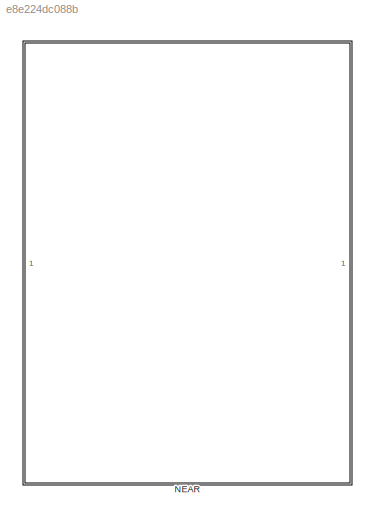
MODEL slx_e8e224dc088b
KIND library
CONFIG AbsTol = auto
CONFIG EnableMultiTasking = off
CONFIG FixedStep = auto
CONFIG MaxStep = auto
CONFIG MinStep = auto
CONFIG RelTol = 1e-3
CONFIG SampleTimeConstraint = Unconstrained
CONFIG SolverName = VariableStepAuto
CONFIG StartTime = 0.0
CONFIG StopTime = 10.0
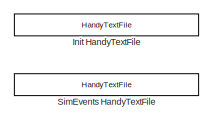
[diagram: NEAR - part 1/3, top left region]
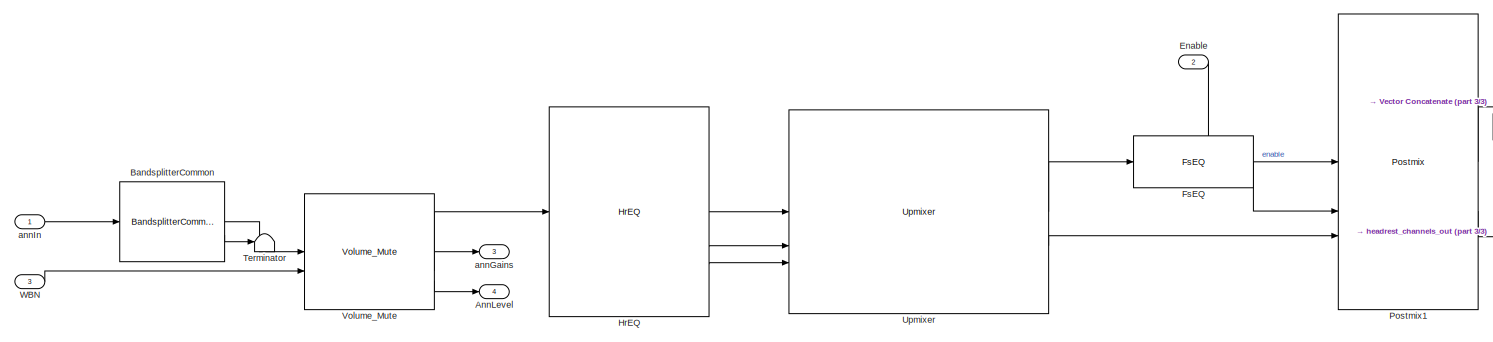
[diagram: NEAR - part 2/3, bottom center region]
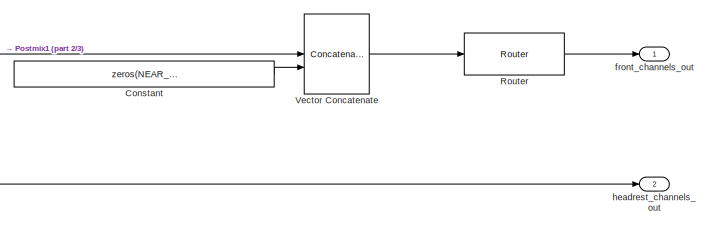
[diagram: NEAR - part 3/3, bottom right region]
BLOCK [SubSystem] NEAR
BLOCK [Outport] NEAR/AnnLevel
  Port = 4
BLOCK [Reference] NEAR/BandsplitterCommon  REF=BandsplitterCommon/BandsplitterCommon
  SourceBlock = BandsplitterCommon/BandsplitterCommon
  SourceType = NEAR 1.1 Bandsplitter
BLOCK [Constant] NEAR/Constant
  OutDataTypeStr = single
  Value = zeros(NEAR_frame_size/4, NEAR_rear_channel_count)
BLOCK [Inport] NEAR/Enable
  Port = 2
BLOCK [Reference] NEAR/FsEQ  REF=FsEQLib/FsEQ
  SourceBlock = FsEQLib/FsEQ
  SourceType = FsEQ
BLOCK [Reference] NEAR/HrEQ  REF=HrEQLib/HrEQ
  SourceBlock = HrEQLib/HrEQ
  SourceType = HrEQ
BLOCK [Reference] NEAR/Init HandyTextFile  REF=HandyTextFile/HandyTextFile
  SourceBlock = HandyTextFile/HandyTextFile
  SourceType = Handy Text File
BLOCK [Reference] NEAR/Postmix1  REF=PostmixLib/Postmix
  SourceBlock = PostmixLib/Postmix
  SourceType = SubSystem
BLOCK [Reference] NEAR/Router  REF=Router/Router
  SourceBlock = Router/Router
  SourceType = Bose Router
BLOCK [Reference] NEAR/SimEvents HandyTextFile  REF=HandyTextFile/HandyTextFile
  SourceBlock = HandyTextFile/HandyTextFile
  SourceType = Handy Text File
BLOCK [Terminator] NEAR/Terminator
BLOCK [Reference] NEAR/Upmixer  REF=UpmixerLib/Upmixer
  SourceBlock = UpmixerLib/Upmixer
  SourceType = SubSystem
BLOCK [Concatenate] NEAR/Vector Concatenate
  ConcatenateDimension = 2
  Mode = Multidimensional array
BLOCK [Reference] NEAR/Volume_Mute  REF=VolMuteVNCALD/Volume_Mute
  SourceBlock = VolMuteVNCALD/Volume_Mute
BLOCK [Inport] NEAR/WBN
  Port = 3
BLOCK [Outport] NEAR/annGains
  Port = 3
BLOCK [Inport] NEAR/annIn
  OutDataTypeStr = single
BLOCK [Outport] NEAR/front_channels_out
  VectorParamsAs1DForOutWhenUnconnected = off
BLOCK [Outport] NEAR/headrest_channels_out
  Port = 2
  VectorParamsAs1DForOutWhenUnconnected = off
LINE NEAR/BandsplitterCommon:1 -> NEAR/Volume_Mute:1
LINE NEAR/BandsplitterCommon:2 -> NEAR/Terminator:1
LINE NEAR/Constant:1 -> NEAR/Vector Concatenate:2
LINE NEAR/Enable:1 -> NEAR/Postmix1:1
LINE NEAR/FsEQ:1 -> NEAR/Postmix1:2
LINE NEAR/HrEQ:1 -> NEAR/Upmixer:1
LINE NEAR/HrEQ:2 -> NEAR/Upmixer:2
LINE NEAR/HrEQ:3 -> NEAR/Upmixer:3
LINE NEAR/Postmix1:1 -> NEAR/Vector Concatenate:1
LINE NEAR/Postmix1:2 -> NEAR/headrest_channels_out:1
LINE NEAR/Router:1 -> NEAR/front_channels_out:1
LINE NEAR/Upmixer:1 -> NEAR/FsEQ:1
LINE NEAR/Upmixer:2 -> NEAR/Postmix1:3
LINE NEAR/Vector Concatenate:1 -> NEAR/Router:1
LINE NEAR/Volume_Mute:1 -> NEAR/HrEQ:1
LINE NEAR/Volume_Mute:2 -> NEAR/annGains:1
LINE NEAR/Volume_Mute:3 -> NEAR/AnnLevel:1
LINE NEAR/WBN:1 -> NEAR/Volume_Mute:2
LINE NEAR/annIn:1 -> NEAR/BandsplitterCommon:1
